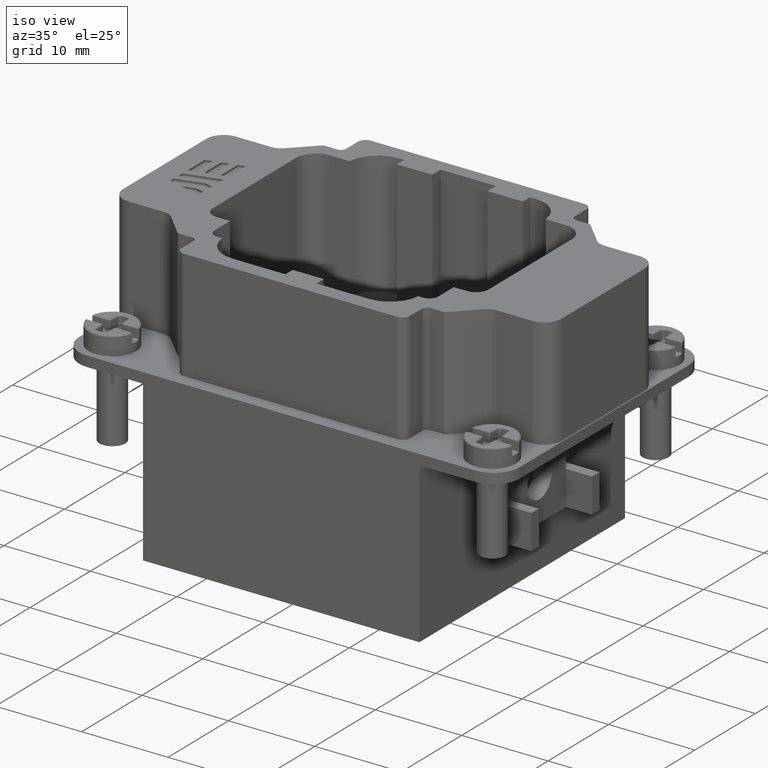
[diagram: clean part render]
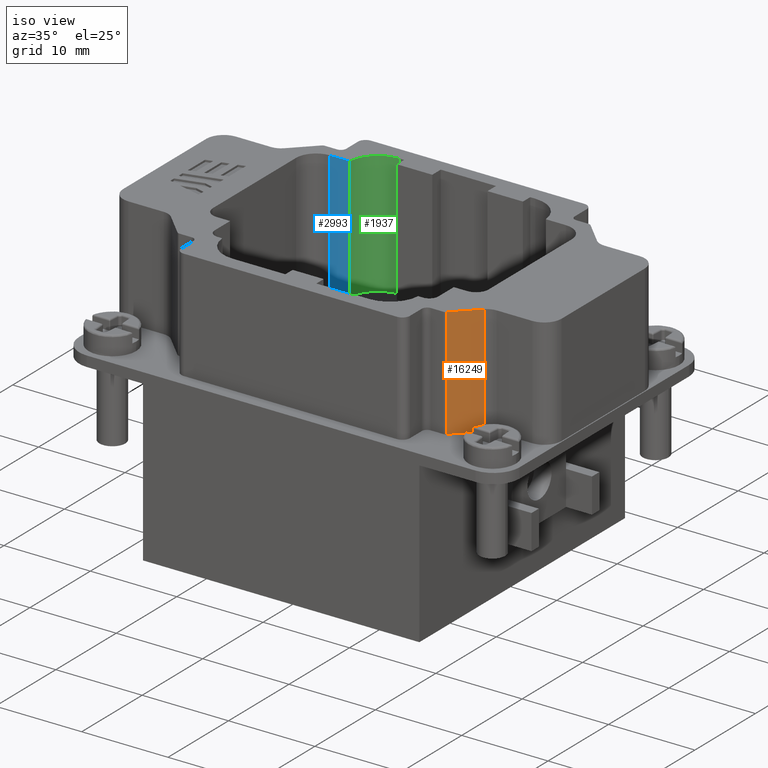
[diagram: same view with three faces highlighted in distinct colors, each labeled with its STEP entity id]
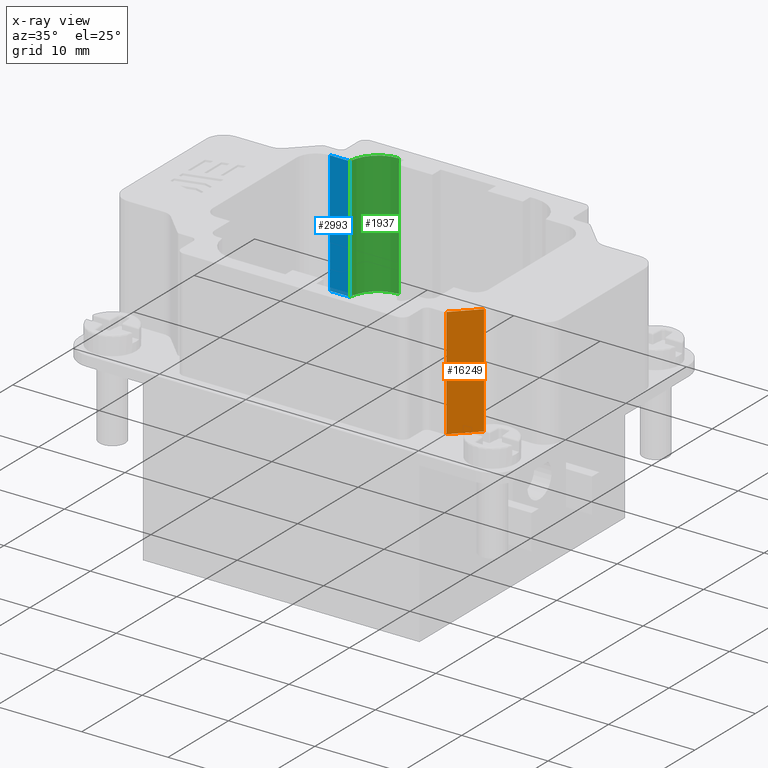
[diagram: x-ray of the same camera — body ghosted, the three highlighted faces saturated]
A machine part, iso view with three faces highlighted in distinct colors.
The next image is the same camera in x-ray (body ghosted, the three faces saturated) — at least one of them is partly hidden behind the body in this view.
Their STEP definitions:

[orange] entity #16249 — the highlighted planar face has unit normal (0.7071, -0.7071, 0).
#1135 = VECTOR ( 'NONE', #8871, 39.37007874015748854 ) ;
#1520 = VECTOR ( 'NONE', #6166, 39.37007874015748143 ) ;
#2361 = VERTEX_POINT ( 'NONE', #17033 ) ;
#2763 = DIRECTION ( 'NONE',  ( 0.7071067811865469066, 0.7071067811865479058, 0.000000000000000000 ) ) ;
#3783 = VECTOR ( 'NONE', #4234, 39.37007874015748143 ) ;
#3889 = VERTEX_POINT ( 'NONE', #19079 ) ;
#3966 = EDGE_CURVE ( 'NONE', #3889, #6528, #11845, .T. ) ;
#4234 = DIRECTION ( 'NONE',  ( 0.000000000000000000, -0.000000000000000000, -1.000000000000000000 ) ) ;
#4428 = ORIENTED_EDGE ( 'NONE', *, *, #13921, .T. ) ;
#4652 = CARTESIAN_POINT ( 'NONE',  ( 0.6127210333953779786, -0.4693000116460905868, -0.5511811023720866176 ) ) ;
#6166 = DIRECTION ( 'NONE',  ( -0.000000000000000000, 0.000000000000000000, 1.000000000000000000 ) ) ;
#6528 = VERTEX_POINT ( 'NONE', #18354 ) ;
#7294 = LINE ( 'NONE', #13456, #1135 ) ;
#7385 = VERTEX_POINT ( 'NONE', #7976 ) ;
#7976 = CARTESIAN_POINT ( 'NONE',  ( 0.7136743232525873948, -0.3683467217888811152, -9.882323524680789322E-12 ) ) ;
#8871 = DIRECTION ( 'NONE',  ( -0.7071067811865469066, -0.7071067811865479058, -0.000000000000000000 ) ) ;
#9224 = ORIENTED_EDGE ( 'NONE', *, *, #10100, .T. ) ;
#9363 = FACE_OUTER_BOUND ( 'NONE', #18839, .T. ) ;
#10100 = EDGE_CURVE ( 'NONE', #7385, #2361, #7294, .T. ) ;
#11059 = VECTOR ( 'NONE', #13406, 39.37007874015748854 ) ;
#11628 = EDGE_CURVE ( 'NONE', #2361, #3889, #12172, .T. ) ;
#11845 = LINE ( 'NONE', #18516, #11059 ) ;
#12172 = LINE ( 'NONE', #18534, #3783 ) ;
#12426 = CARTESIAN_POINT ( 'NONE',  ( 0.7136743232525880609, -0.3683467217888803380, -0.5511811023720866176 ) ) ;
#13406 = DIRECTION ( 'NONE',  ( 0.7071067811865642261, 0.7071067811865306973, 6.218768891755882179E-15 ) ) ;
#13456 = CARTESIAN_POINT ( 'NONE',  ( 0.6127210333953779786, -0.4693000116460905868, -9.882323524680789322E-12 ) ) ;
#13921 = EDGE_CURVE ( 'NONE', #6528, #7385, #20464, .T. ) ;
#14263 = ORIENTED_EDGE ( 'NONE', *, *, #3966, .T. ) ;
#15485 = AXIS2_PLACEMENT_3D ( 'NONE', #4652, #17390, #2763 ) ;
#16249 = ADVANCED_FACE ( 'NONE', ( #9363 ), #17289, .T. ) ;
#17033 = CARTESIAN_POINT ( 'NONE',  ( 0.6127210333953702071, -0.4693000116460985249, -9.882118636081263599E-12 ) ) ;
#17289 = PLANE ( 'NONE',  #15485 ) ;
#17390 = DIRECTION ( 'NONE',  ( 0.7071067811865480168, -0.7071067811865470176, 0.000000000000000000 ) ) ;
#17899 = ORIENTED_EDGE ( 'NONE', *, *, #11628, .T. ) ;
#18354 = CARTESIAN_POINT ( 'NONE',  ( 0.7136743232525890601, -0.3683467217888817813, -0.5039370078740236236 ) ) ;
#18516 = CARTESIAN_POINT ( 'NONE',  ( 0.6127210333953622134, -0.4693000116461062965, -0.5039370078740251779 ) ) ;
#18534 = CARTESIAN_POINT ( 'NONE',  ( 0.6127210333953623245, -0.4693000116461064075, -0.5511811023720866176 ) ) ;
#18839 = EDGE_LOOP ( 'NONE', ( #9224, #17899, #14263, #4428 ) ) ;
#19079 = CARTESIAN_POINT ( 'NONE',  ( 0.6127210333953699850, -0.4693000116460985249, -0.5039370078740245118 ) ) ;
#20464 = LINE ( 'NONE', #12426, #1520 ) ;

[blue] entity #2993 — the highlighted planar face has unit normal (-0, 1, 0).
#656 = CARTESIAN_POINT ( 'NONE',  ( -0.4466170449908543061, 0.4154874413342047323, -0.5590551181102441092 ) ) ;
#1033 = CARTESIAN_POINT ( 'NONE',  ( -0.5375347139608641633, 0.4154874413342023454, -9.883074782879046536E-12 ) ) ;
#1704 = VERTEX_POINT ( 'NONE', #20075 ) ;
#2050 = EDGE_CURVE ( 'NONE', #1704, #17041, #9753, .T. ) ;
#2302 = ORIENTED_EDGE ( 'NONE', *, *, #9341, .T. ) ;
#2706 = AXIS2_PLACEMENT_3D ( 'NONE', #16344, #3801, #17910 ) ;
#2993 = ADVANCED_FACE ( 'NONE', ( #8418 ), #10086, .F. ) ;
#3731 = LINE ( 'NONE', #7290, #5790 ) ;
#3801 = DIRECTION ( 'NONE',  ( -4.131530244717590261E-14, 1.000000000000000000, 0.000000000000000000 ) ) ;
#5366 = CARTESIAN_POINT ( 'NONE',  ( -0.4466170449908540840, 0.4154874413342027895, -9.883074782879046536E-12 ) ) ;
#5790 = VECTOR ( 'NONE', #15225, 39.37007874015748143 ) ;
#7290 = CARTESIAN_POINT ( 'NONE',  ( -0.5375347139608661617, 0.4154874413342040107, -0.5590551181102441092 ) ) ;
#7629 = EDGE_CURVE ( 'NONE', #7734, #18320, #10754, .T. ) ;
#7734 = VERTEX_POINT ( 'NONE', #1033 ) ;
#8418 = FACE_OUTER_BOUND ( 'NONE', #15103, .T. ) ;
#8530 = EDGE_CURVE ( 'NONE', #18320, #1704, #8612, .T. ) ;
#8612 = LINE ( 'NONE', #656, #13454 ) ;
#9341 = EDGE_CURVE ( 'NONE', #7734, #17041, #3731, .T. ) ;
#9753 = LINE ( 'NONE', #12885, #17353 ) ;
#10086 = PLANE ( 'NONE',  #2706 ) ;
#10373 = DIRECTION ( 'NONE',  ( -0.000000000000000000, -0.000000000000000000, -1.000000000000000000 ) ) ;
#10754 = LINE ( 'NONE', #17231, #17755 ) ;
#12885 = CARTESIAN_POINT ( 'NONE',  ( -0.3110236220489618342, 0.4154874413342087291, -0.5590551181102441092 ) ) ;
#13317 = ORIENTED_EDGE ( 'NONE', *, *, #7629, .F. ) ;
#13454 = VECTOR ( 'NONE', #10373, 39.37007874015748143 ) ;
#14172 = ORIENTED_EDGE ( 'NONE', *, *, #2050, .F. ) ;
#15103 = EDGE_LOOP ( 'NONE', ( #2302, #14172, #19843, #13317 ) ) ;
#15225 = DIRECTION ( 'NONE',  ( -0.000000000000000000, -0.000000000000000000, -1.000000000000000000 ) ) ;
#16344 = CARTESIAN_POINT ( 'NONE',  ( -0.4466170449908504203, 0.4154874413342047323, -0.5590551181102441092 ) ) ;
#17041 = VERTEX_POINT ( 'NONE', #18585 ) ;
#17119 = DIRECTION ( 'NONE',  ( 1.000000000000000000, 0.000000000000000000, -0.000000000000000000 ) ) ;
#17231 = CARTESIAN_POINT ( 'NONE',  ( 0.9205570554001576422, 0.4154874413342007911, -9.883082978423030926E-12 ) ) ;
#17353 = VECTOR ( 'NONE', #19648, 39.37007874015748143 ) ;
#17755 = VECTOR ( 'NONE', #17119, 39.37007874015748143 ) ;
#17910 = DIRECTION ( 'NONE',  ( -1.000000000000000000, -4.131530244717590261E-14, 0.000000000000000000 ) ) ;
#18320 = VERTEX_POINT ( 'NONE', #5366 ) ;
#18585 = CARTESIAN_POINT ( 'NONE',  ( -0.5375347139608641633, 0.4154874413342063422, -0.5590551181102441092 ) ) ;
#19648 = DIRECTION ( 'NONE',  ( -1.000000000000000000, -0.000000000000000000, 0.000000000000000000 ) ) ;
#19843 = ORIENTED_EDGE ( 'NONE', *, *, #8530, .F. ) ;
#20075 = CARTESIAN_POINT ( 'NONE',  ( -0.4466170449908538065, 0.4154874413342067307, -0.5590551181102441092 ) ) ;

[green] entity #1937 — the highlighted cylindrical surface (edge-blend (fillet) strip) has radius 3.4534 mm, axis along (0, 0, 1).
#339 = AXIS2_PLACEMENT_3D ( 'NONE', #11001, #15814, #9558 ) ;
#656 = CARTESIAN_POINT ( 'NONE',  ( -0.4466170449908543061, 0.4154874413342047323, -0.5590551181102441092 ) ) ;
#1704 = VERTEX_POINT ( 'NONE', #20075 ) ;
#1731 = VECTOR ( 'NONE', #8608, 39.37007874015748143 ) ;
#1937 = ADVANCED_FACE ( 'NONE', ( #4635 ), #3165, .F. ) ;
#2913 = ORIENTED_EDGE ( 'NONE', *, *, #8713, .F. ) ;
#3165 = CYLINDRICAL_SURFACE ( 'NONE', #339, 0.1359598821038626171 ) ;
#3452 = DIRECTION ( 'NONE',  ( 0.000000000000000000, 0.000000000000000000, 1.000000000000000000 ) ) ;
#3628 = EDGE_CURVE ( 'NONE', #4550, #20312, #3780, .T. ) ;
#3780 = LINE ( 'NONE', #12987, #1731 ) ;
#4550 = VERTEX_POINT ( 'NONE', #9803 ) ;
#4635 = FACE_OUTER_BOUND ( 'NONE', #14350, .T. ) ;
#4846 = CIRCLE ( 'NONE', #18166, 0.1359598821038626171 ) ;
#5366 = CARTESIAN_POINT ( 'NONE',  ( -0.4466170449908540840, 0.4154874413342027895, -9.883074782879046536E-12 ) ) ;
#8530 = EDGE_CURVE ( 'NONE', #18320, #1704, #8612, .T. ) ;
#8536 = CARTESIAN_POINT ( 'NONE',  ( -0.3110236220489618342, 0.4055118111988464946, -9.883074782879046536E-12 ) ) ;
#8608 = DIRECTION ( 'NONE',  ( -0.000000000000000000, -0.000000000000000000, -1.000000000000000000 ) ) ;
#8612 = LINE ( 'NONE', #656, #13454 ) ;
#8713 = EDGE_CURVE ( 'NONE', #20312, #1704, #15116, .T. ) ;
#9325 = ORIENTED_EDGE ( 'NONE', *, *, #3628, .F. ) ;
#9558 = DIRECTION ( 'NONE',  ( 1.000000000000000000, 0.000000000000000000, 0.000000000000000000 ) ) ;
#9803 = CARTESIAN_POINT ( 'NONE',  ( -0.3110236220489612236, 0.5414716933027069468, -9.883074782879046536E-12 ) ) ;
#10373 = DIRECTION ( 'NONE',  ( -0.000000000000000000, -0.000000000000000000, -1.000000000000000000 ) ) ;
#11001 = CARTESIAN_POINT ( 'NONE',  ( -0.3110236220489618342, 0.4055118111988464946, -0.5590551181102441092 ) ) ;
#11020 = ORIENTED_EDGE ( 'NONE', *, *, #8530, .T. ) ;
#11201 = CARTESIAN_POINT ( 'NONE',  ( -0.3110236220489618342, 0.4055118111988464946, -0.5590551181102441092 ) ) ;
#11488 = EDGE_CURVE ( 'NONE', #18320, #4550, #4846, .T. ) ;
#11912 = ORIENTED_EDGE ( 'NONE', *, *, #11488, .F. ) ;
#12767 = DIRECTION ( 'NONE',  ( 1.000000000000000000, 0.000000000000000000, 0.000000000000000000 ) ) ;
#12987 = CARTESIAN_POINT ( 'NONE',  ( -0.3110236220489606129, 0.5414716933027090562, -0.5590551181102441092 ) ) ;
#13119 = DIRECTION ( 'NONE',  ( -0.000000000000000000, -0.000000000000000000, -1.000000000000000000 ) ) ;
#13454 = VECTOR ( 'NONE', #10373, 39.37007874015748143 ) ;
#14350 = EDGE_LOOP ( 'NONE', ( #11020, #2913, #9325, #11912 ) ) ;
#15116 = CIRCLE ( 'NONE', #16777, 0.1359598821038626171 ) ;
#15814 = DIRECTION ( 'NONE',  ( 0.000000000000000000, 0.000000000000000000, 1.000000000000000000 ) ) ;
#16777 = AXIS2_PLACEMENT_3D ( 'NONE', #11201, #3452, #12767 ) ;
#18166 = AXIS2_PLACEMENT_3D ( 'NONE', #8536, #13119, #19787 ) ;
#18320 = VERTEX_POINT ( 'NONE', #5366 ) ;
#18939 = CARTESIAN_POINT ( 'NONE',  ( -0.3110236220489612236, 0.5414716933027069468, -0.5590551181102441092 ) ) ;
#19787 = DIRECTION ( 'NONE',  ( 1.000000000000000000, 2.009304473783926062E-15, 0.000000000000000000 ) ) ;
#20075 = CARTESIAN_POINT ( 'NONE',  ( -0.4466170449908538065, 0.4154874413342067307, -0.5590551181102441092 ) ) ;
#20312 = VERTEX_POINT ( 'NONE', #18939 ) ;